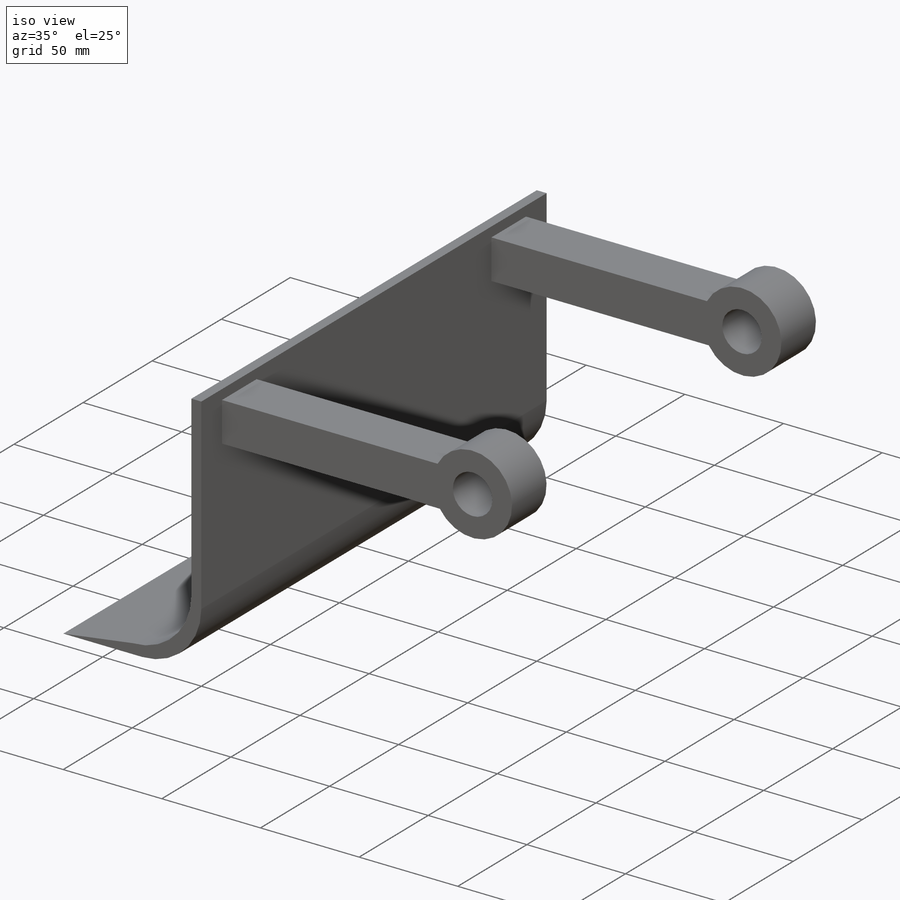
[diagram: iso view]
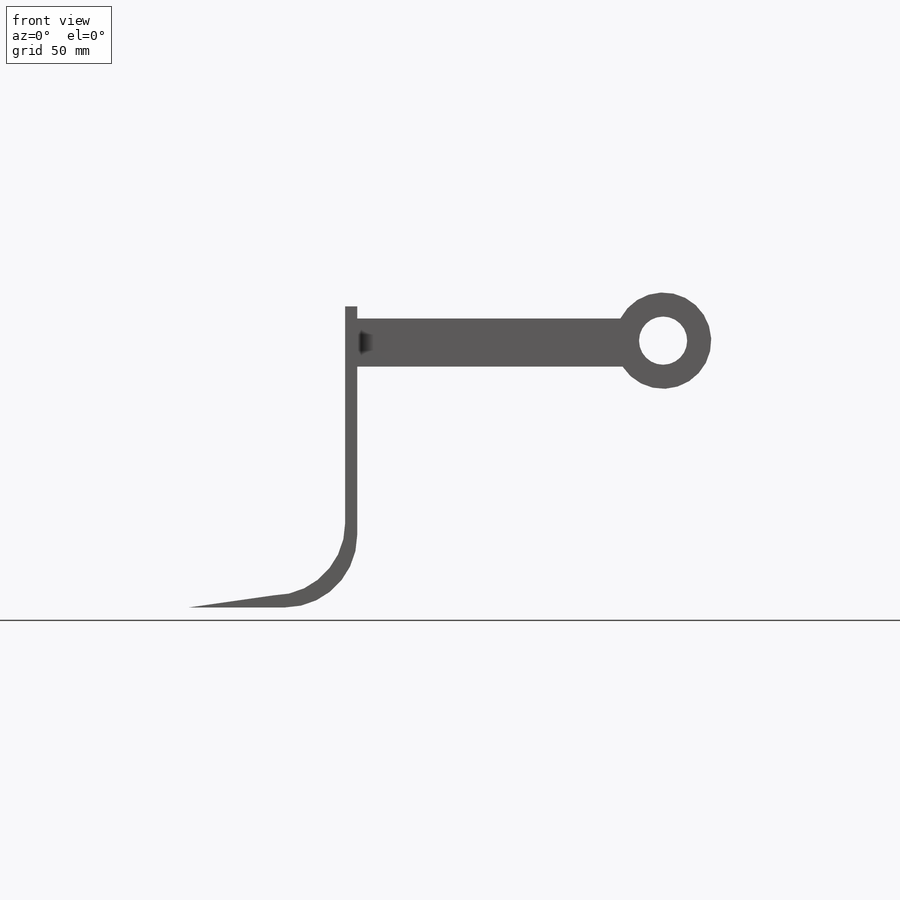
[diagram: front view]
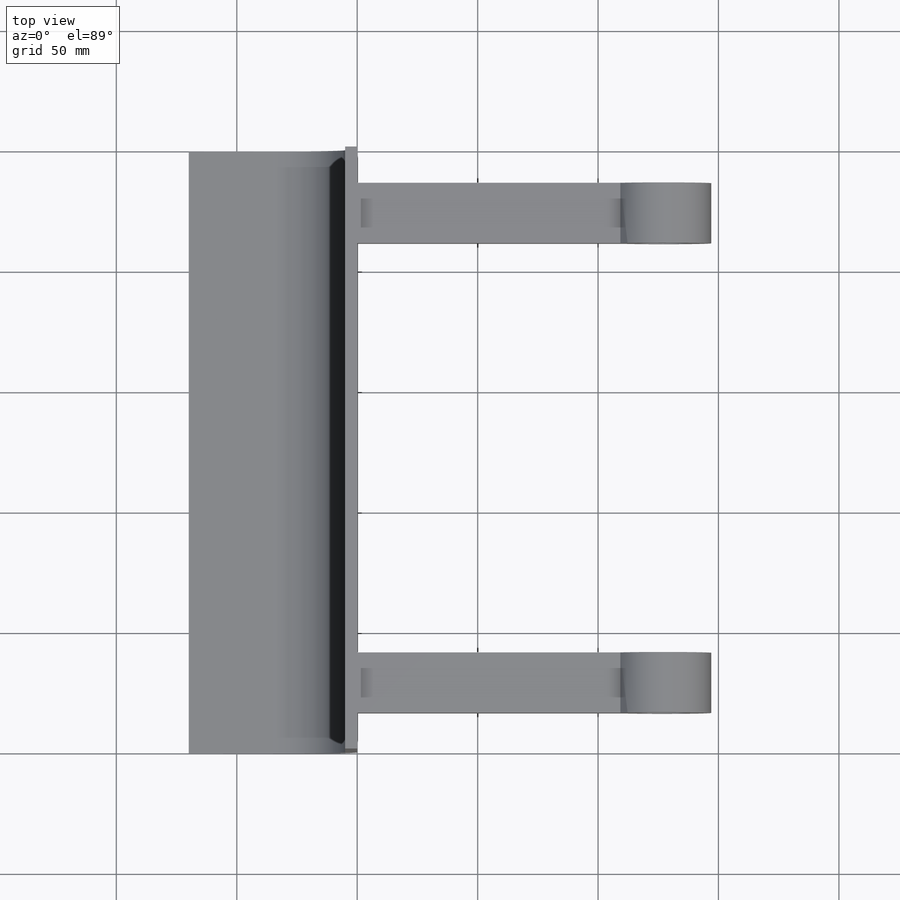
[diagram: top view]
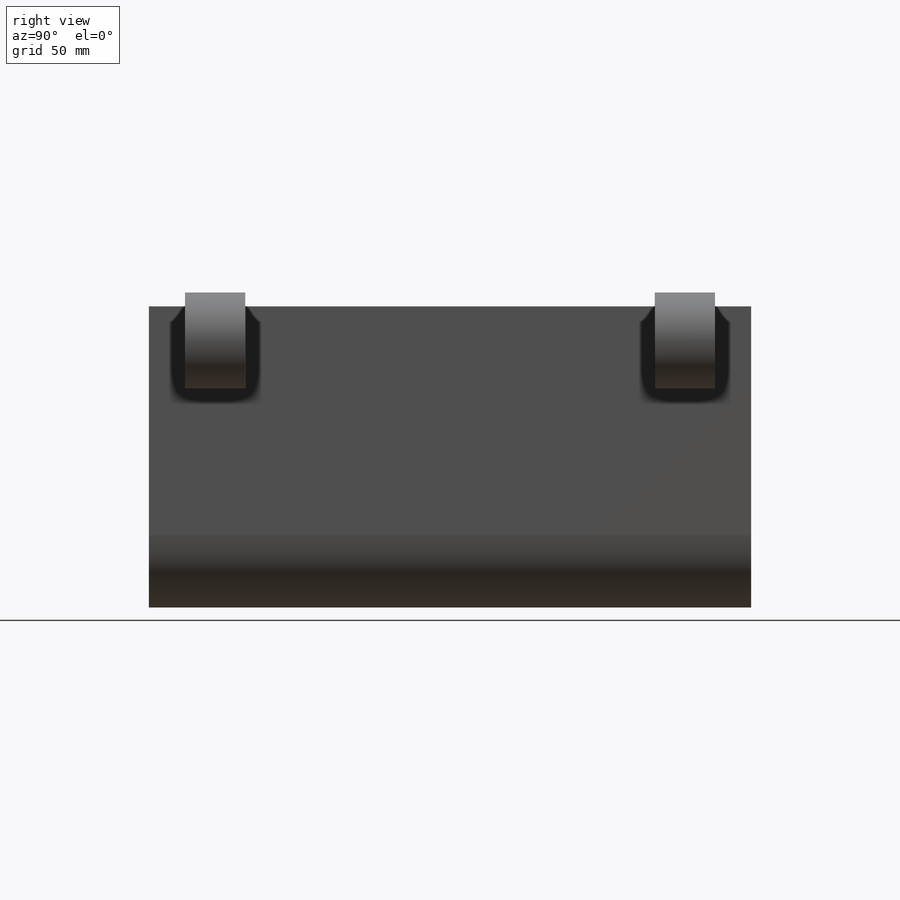
[diagram: right view]
SOLIDWORKS PART (.sldprt)
format: sldprt  version: not decoded by parser v0  size: 186,368 bytes
history: native  units: mm
features: sketch x5, extrude x4, plane x3, material x1, cut_extrude x1 (+9 scaffold rows collapsed)
feature tree (23):
  scaffold x9  (default folders/planes/origin — collapsed)
  material  "Matériau <non spécifié>"
  plane  "Plan de face"
  plane  "Plan de dessus"
  plane  "Plan de droite"
  sketch  "Esquisse1"  dims[c1.D2=30.0mm c1.D1=80.0mm c2.D2=5.0mm c2.D3=125.0mm]
  extrude  "Boss.-Extru.1"  Depth=250mm
  sketch  "Esquisse3"  dims[D1=25.0mm D2=25.0mm D3=20.0mm D4=20.0mm D5=15.0mm D6=15.0mm D7=5.0mm]
  extrude  "Boss.-Extru.2"  Depth=125mm
  sketch  "Esquisse4"  dims[D1=40.0mm D2=127.0mm]
  extrude  "Boss.-Extru.3"  [1 undecoded]
  sketch  "Esquisse5"
  extrude  "Boss.-Extru.4"  [1 undecoded]
  sketch  "Esquisse6"  dims[D1=20.0mm]
  cut_extrude  "Enlèv. mat.-Extru.1"  [1 undecoded]
decode coverage: 6 of 10 modeling features carry decoded parameters
note: 3 parameter values undecoded
summary: no parameter record found for 3 features
note: suppression state not decoded; provenance and decode notes live in map.json
